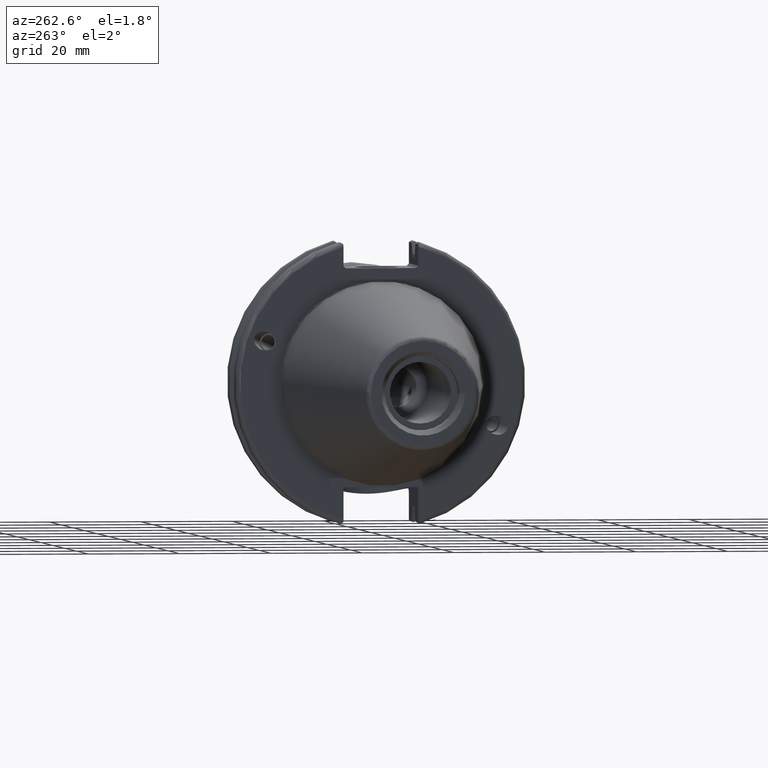
[diagram: clean part render]
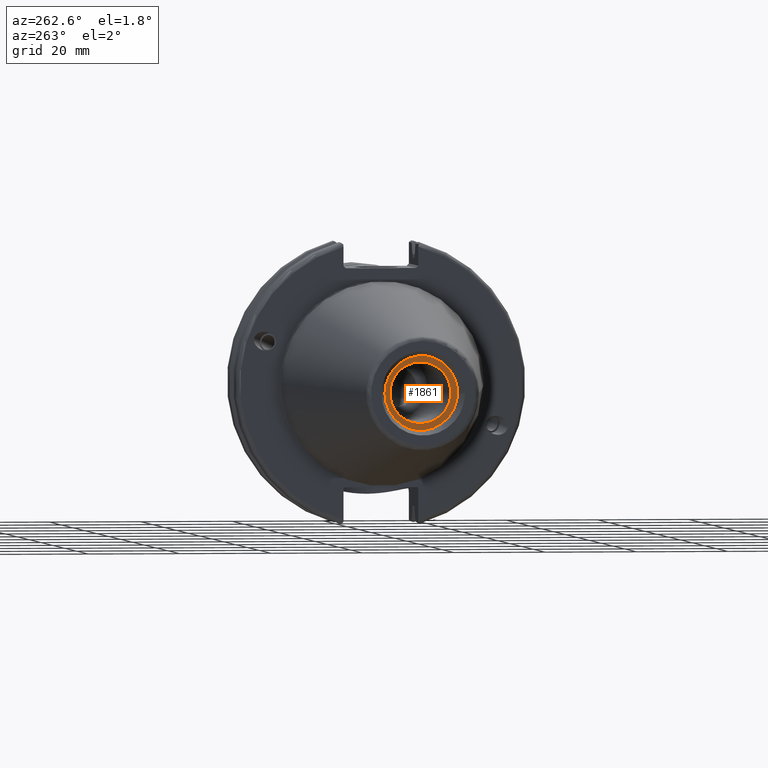
[diagram: same view with one face highlighted and labeled with its STEP entity id]
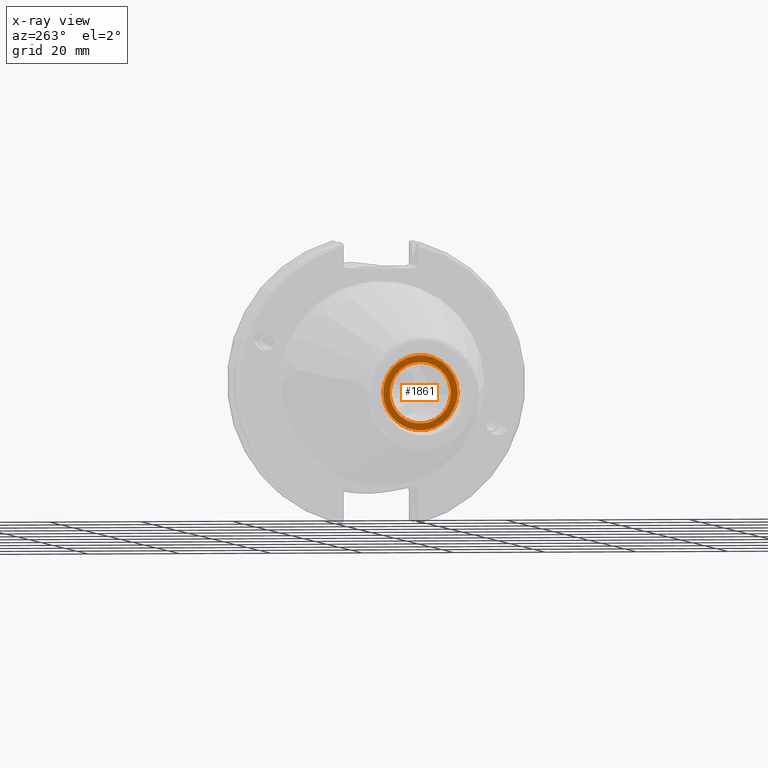
[diagram: x-ray of the same camera — body ghosted, the highlighted face saturated]
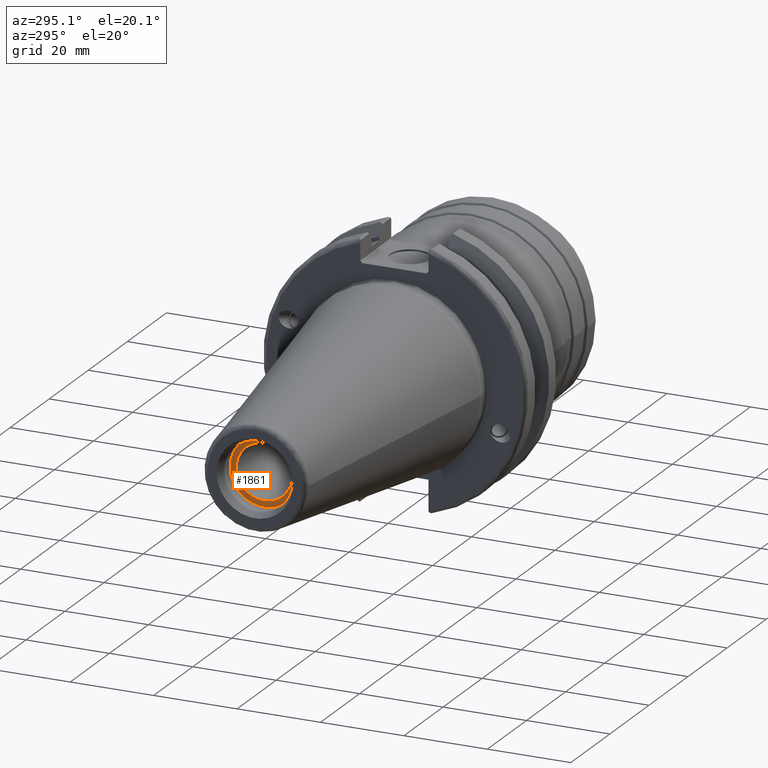
[diagram: same view with one face highlighted and labeled with its STEP entity id]
A machine part, auxiliary view. The second image highlights one B-rep face of the part: STEP entity #1861.
The next image is the same camera in x-ray: the body ghosted, the highlighted face saturated — about 0% of this face is hidden behind the body in this view.
A second angle (auxiliary view) of the same face is appended — the face is thin or edge-on in the first view.
In plain terms, the highlighted planar face has unit normal (-1, 0, 0).
Its self-contained STEP definition (entity closure, byte-faithful):
#77=FACE_BOUND('',#589,.T.);
#111=PLANE('',#2130);
#470=FACE_OUTER_BOUND('',#588,.T.);
#588=EDGE_LOOP('',(#1737));
#589=EDGE_LOOP('',(#1738));
#674=CIRCLE('',#2051,6.6929);
#706=CIRCLE('',#2126,8.14999999999999);
#820=VERTEX_POINT('',#3432);
#891=VERTEX_POINT('',#3785);
#1059=EDGE_CURVE('',#820,#820,#674,.T.);
#1170=EDGE_CURVE('',#891,#891,#706,.T.);
#1737=ORIENTED_EDGE('',*,*,#1170,.F.);
#1738=ORIENTED_EDGE('',*,*,#1059,.T.);
#1861=ADVANCED_FACE('',(#470,#77),#111,.T.);
#2051=AXIS2_PLACEMENT_3D('',#3433,#2503,#2504);
#2126=AXIS2_PLACEMENT_3D('',#3786,#2700,#2701);
#2130=AXIS2_PLACEMENT_3D('',#3794,#2711,#2712);
#2503=DIRECTION('center_axis',(1.,0.,0.));
#2504=DIRECTION('ref_axis',(0.,0.,1.));
#2700=DIRECTION('center_axis',(1.,0.,0.));
#2701=DIRECTION('ref_axis',(0.,0.,-1.));
#2711=DIRECTION('center_axis',(-1.,0.,0.));
#2712=DIRECTION('ref_axis',(0.,0.,1.));
#3432=CARTESIAN_POINT('',(-63.45,8.19643856201332E-16,-6.6929));
#3433=CARTESIAN_POINT('Origin',(-63.45,0.,0.));
#3785=CARTESIAN_POINT('',(-63.45,-8.14999999999999,-9.98087141305092E-16));
#3786=CARTESIAN_POINT('Origin',(-63.45,0.,0.));
#3794=CARTESIAN_POINT('Origin',(-63.45,8.14999999999999,0.));